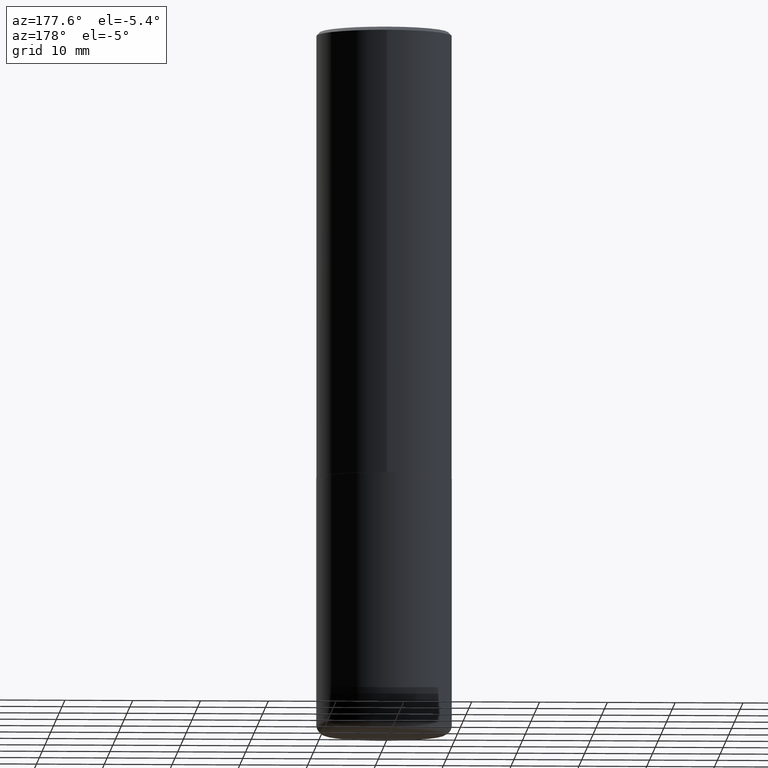
[diagram: clean part render]
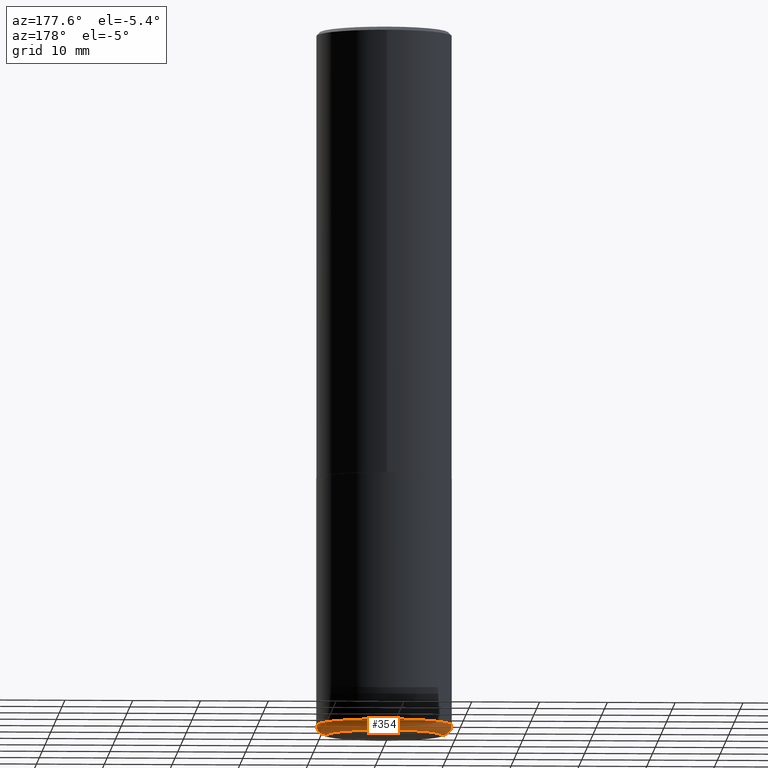
[diagram: same view with one face highlighted and labeled with its STEP entity id]
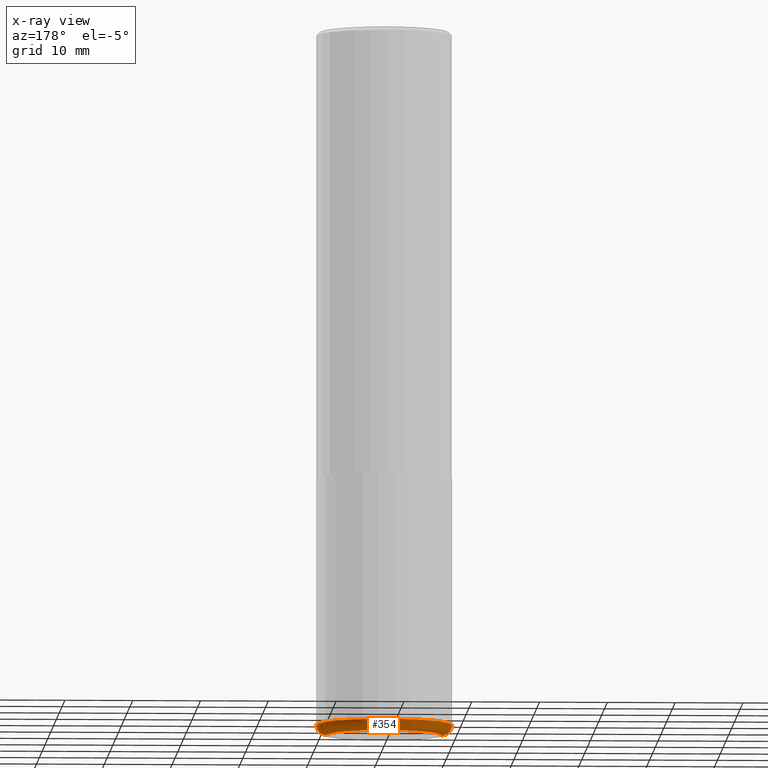
[diagram: x-ray of the same camera — body ghosted, the highlighted face saturated]
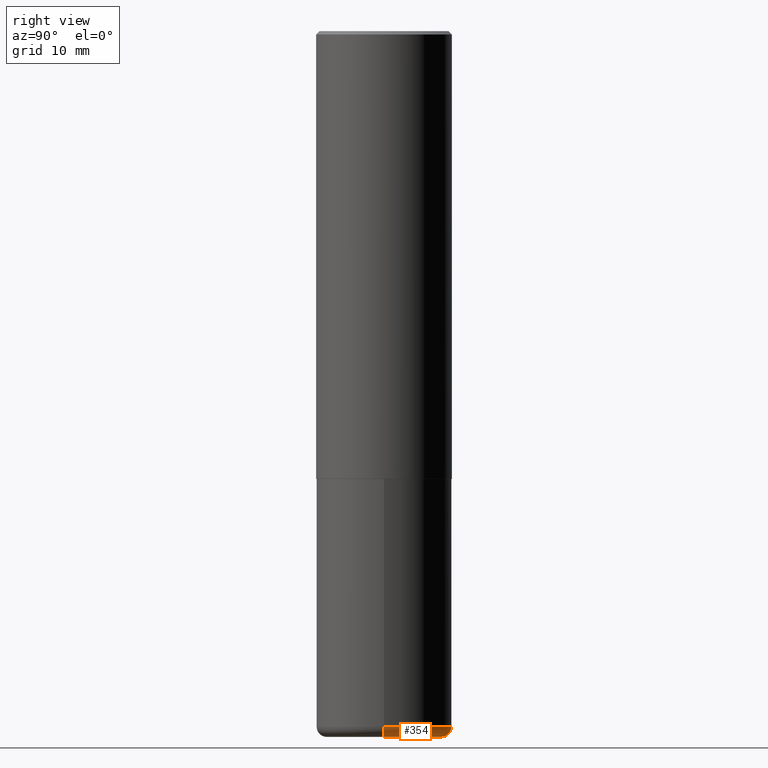
[diagram: same view with one face highlighted and labeled with its STEP entity id]
A machine part, auxiliary view. The second image highlights one B-rep face of the part: STEP entity #354.
The next image is the same camera in x-ray: the body ghosted, the highlighted face saturated — about 0% of this face is hidden behind the body in this view.
A second angle (right view) of the same face is appended — the face is thin or edge-on in the first view.
In plain terms, the highlighted toroidal blend (fillet) surface has major radius 8.4988 mm and minor (blend) radius 1.5011 mm.
Its self-contained STEP definition (entity closure, byte-faithful):
#3 = VERTEX_POINT ( 'NONE', #144 ) ;
#8 = CIRCLE ( 'NONE', #206, 0.05909999999999992343 ) ;
#26 = CARTESIAN_POINT ( 'NONE',  ( -0.3936999999999999389, -1.129211704408011394E-14, -4.035400000000000098 ) ) ;
#31 = CARTESIAN_POINT ( 'NONE',  ( -0.3346000000000000085, -1.171204780091433423E-14, -4.035400000000000098 ) ) ;
#40 = CIRCLE ( 'NONE', #225, 0.05909999999999992343 ) ;
#42 = VERTEX_POINT ( 'NONE', #274 ) ;
#47 = FACE_OUTER_BOUND ( 'NONE', #180, .T. ) ;
#55 = CARTESIAN_POINT ( 'NONE',  ( 9.868444820479501934E-29, -1.408952379476762952E-14, -4.035400000000000098 ) ) ;
#56 = CARTESIAN_POINT ( 'NONE',  ( 1.001297202692504215E-28, -1.429587034189326149E-14, -4.094500000000000028 ) ) ;
#78 = AXIS2_PLACEMENT_3D ( 'NONE', #56, #157, #164 ) ;
#84 = DIRECTION ( 'NONE',  ( 1.000000000000000000, -6.982962677686269866E-15, 0.000000000000000000 ) ) ;
#98 = DIRECTION ( 'NONE',  ( 7.105427357601001859E-15, 1.000000000000000000, -3.491481338843145583E-15 ) ) ;
#101 = EDGE_CURVE ( 'NONE', #42, #245, #358, .T. ) ;
#144 = CARTESIAN_POINT ( 'NONE',  ( 0.3936999999999999389, -1.683871620097271431E-14, -4.035400000000000098 ) ) ;
#149 = CARTESIAN_POINT ( 'NONE',  ( 0.3346000000000000085, -1.642602310672145667E-14, -4.035400000000000098 ) ) ;
#157 = DIRECTION ( 'NONE',  ( -2.445468806185136597E-29, 3.491481338843145583E-15, 1.000000000000000000 ) ) ;
#164 = DIRECTION ( 'NONE',  ( 1.000000000000000000, -6.982962677686269866E-15, 0.000000000000000000 ) ) ;
#173 = VERTEX_POINT ( 'NONE', #26 ) ;
#180 = EDGE_LOOP ( 'NONE', ( #238, #405, #294, #301 ) ) ;
#206 = AXIS2_PLACEMENT_3D ( 'NONE', #149, #253, #220 ) ;
#212 = DIRECTION ( 'NONE',  ( -2.445468806185136597E-29, 3.491481338843145583E-15, 1.000000000000000000 ) ) ;
#220 = DIRECTION ( 'NONE',  ( 1.000000000000000000, -6.982962677686271444E-15, 0.000000000000000000 ) ) ;
#225 = AXIS2_PLACEMENT_3D ( 'NONE', #31, #98, #306 ) ;
#238 = ORIENTED_EDGE ( 'NONE', *, *, #101, .T. ) ;
#245 = VERTEX_POINT ( 'NONE', #325 ) ;
#251 = EDGE_CURVE ( 'NONE', #245, #173, #40, .T. ) ;
#253 = DIRECTION ( 'NONE',  ( -6.982962677686266711E-15, -1.000000000000000000, 3.491481338843145583E-15 ) ) ;
#274 = CARTESIAN_POINT ( 'NONE',  ( 0.3346000000000000085, -1.663236965384708707E-14, -4.094500000000000028 ) ) ;
#294 = ORIENTED_EDGE ( 'NONE', *, *, #304, .F. ) ;
#296 = EDGE_CURVE ( 'NONE', #42, #3, #8, .T. ) ;
#301 = ORIENTED_EDGE ( 'NONE', *, *, #296, .F. ) ;
#304 = EDGE_CURVE ( 'NONE', #3, #173, #321, .T. ) ;
#306 = DIRECTION ( 'NONE',  ( -1.000000000000000000, 7.105427357601001859E-15, 0.000000000000000000 ) ) ;
#321 = CIRCLE ( 'NONE', #357, 0.3936999999999999389 ) ;
#325 = CARTESIAN_POINT ( 'NONE',  ( -0.3346000000000000085, -1.160525569606004165E-14, -4.094500000000000028 ) ) ;
#329 = AXIS2_PLACEMENT_3D ( 'NONE', #373, #212, #338 ) ;
#338 = DIRECTION ( 'NONE',  ( 1.000000000000000000, -6.982962677686269077E-15, 4.883557194083114022E-29 ) ) ;
#354 = ADVANCED_FACE ( 'NONE', ( #47 ), #385, .T. ) ;
#357 = AXIS2_PLACEMENT_3D ( 'NONE', #55, #398, #84 ) ;
#358 = CIRCLE ( 'NONE', #78, 0.3346000000000000085 ) ;
#373 = CARTESIAN_POINT ( 'NONE',  ( 9.868444820479501934E-29, -1.408952379476762952E-14, -4.035400000000000098 ) ) ;
#385 = TOROIDAL_SURFACE ( 'NONE', #329, 0.3346000000000000085, 0.05909999999999992343 ) ;
#398 = DIRECTION ( 'NONE',  ( -2.445468806185136597E-29, 3.491481338843145583E-15, 1.000000000000000000 ) ) ;
#405 = ORIENTED_EDGE ( 'NONE', *, *, #251, .T. ) ;